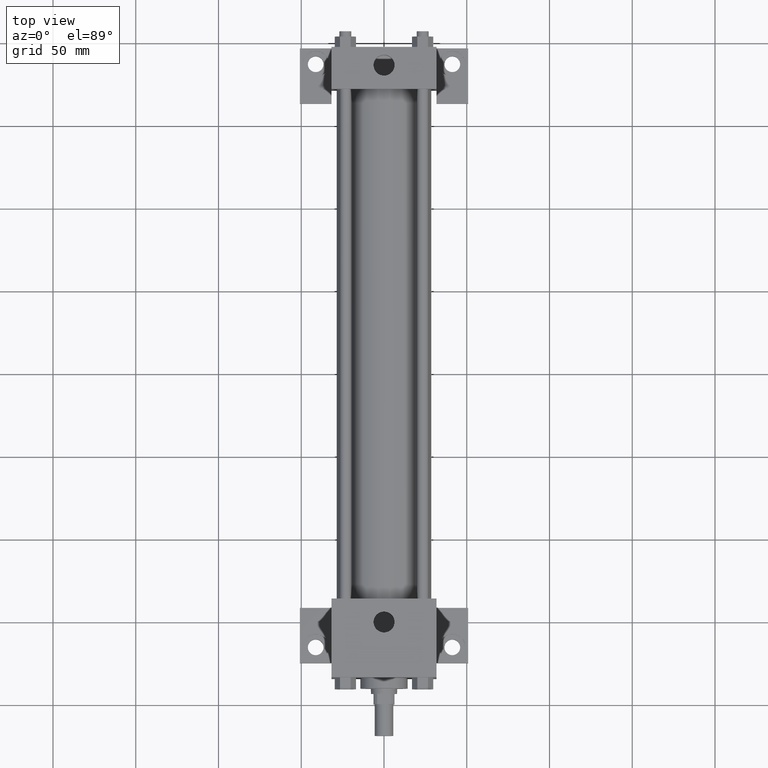
[diagram: clean part render]
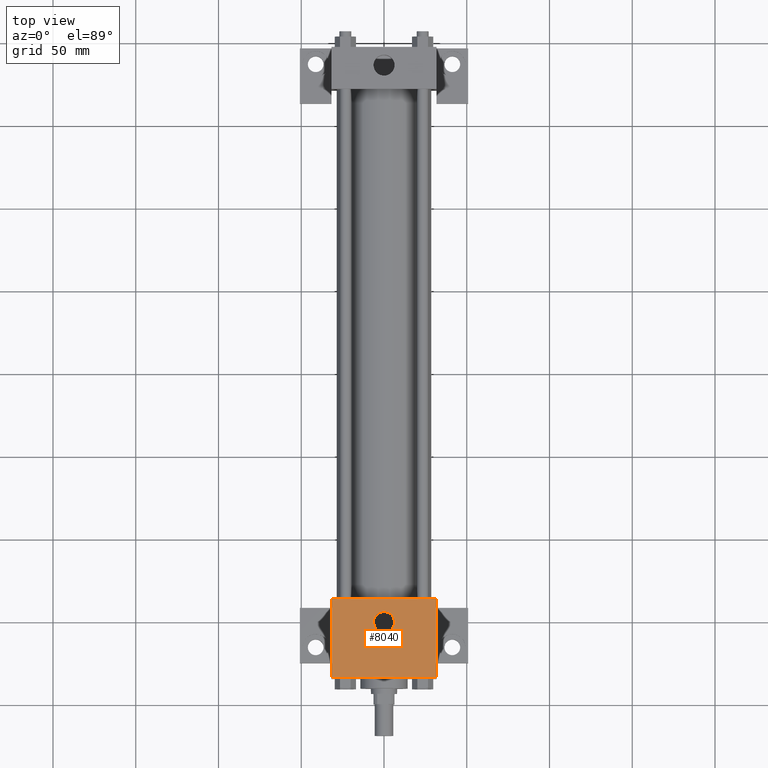
[diagram: same view with one face highlighted and labeled with its STEP entity id]
A machine part, top view. The second image highlights one B-rep face of the part: STEP entity #8040.
In plain terms, the highlighted planar face has unit normal (0, 0, 1).
Its self-contained STEP definition (entity closure, byte-faithful):
#2142=EDGE_CURVE('',#2148,#2148,#2143,.T.);
#2143=CIRCLE('',#2144,6.350000000E+000);
#2144=AXIS2_PLACEMENT_3D('',#2145,#2146,#2147);
#2145=CARTESIAN_POINT('',(0.000000000E+000,4.921250000E+001,3.175000000E+001));
#2146=DIRECTION('',(0.0E+000,0.0E+000,-1.0E+000));
#2147=DIRECTION('',(0.0E+000,-1.0E+000,0.0E+000));
#2148=VERTEX_POINT('',#2149);
#2149=CARTESIAN_POINT('',(0.000000000E+000,4.286250000E+001,3.175000000E+001));
#2554=VERTEX_POINT('',#2555);
#2555=CARTESIAN_POINT('',(-3.175000000E+001,1.587500000E+001,3.175000000E+001));
#2556=EDGE_CURVE('',#2561,#2554,#2557,.T.);
#2557=LINE('',#2558,#2559);
#2558=CARTESIAN_POINT('',(-3.175000000E+001,6.350000000E+001,3.175000000E+001));
#2559=VECTOR('',#2560,1.0E+000);
#2560=DIRECTION('',(0.0E+000,-1.0E+000,0.0E+000));
#2561=VERTEX_POINT('',#2562);
#2562=CARTESIAN_POINT('',(-3.175000000E+001,6.350000000E+001,3.175000000E+001));
#2576=FACE_OUTER_BOUND('',#2578,.T.);
#2577=FACE_BOUND('',#2579,.T.);
#2578=EDGE_LOOP('',(#2580));
#2579=EDGE_LOOP('',(#2581,#2582,#2583,#2584));
#2580=ORIENTED_EDGE('',*,*,#2142,.T.);
#2581=ORIENTED_EDGE('',*,*,#2585,.F.);
#2582=ORIENTED_EDGE('',*,*,#2592,.F.);
#2583=ORIENTED_EDGE('',*,*,#2599,.T.);
#2584=ORIENTED_EDGE('',*,*,#2556,.T.);
#2585=EDGE_CURVE('',#2590,#2554,#2586,.T.);
#2586=LINE('',#2587,#2588);
#2587=CARTESIAN_POINT('',(3.175000000E+001,1.587500000E+001,3.175000000E+001));
#2588=VECTOR('',#2589,1.0E+000);
#2589=DIRECTION('',(-1.0E+000,0.0E+000,0.0E+000));
#2590=VERTEX_POINT('',#2591);
#2591=CARTESIAN_POINT('',(3.175000000E+001,1.587500000E+001,3.175000000E+001));
#2592=EDGE_CURVE('',#2597,#2590,#2593,.T.);
#2593=LINE('',#2594,#2595);
#2594=CARTESIAN_POINT('',(3.175000000E+001,6.350000000E+001,3.175000000E+001));
#2595=VECTOR('',#2596,1.0E+000);
#2596=DIRECTION('',(0.0E+000,-1.0E+000,0.0E+000));
#2597=VERTEX_POINT('',#2598);
#2598=CARTESIAN_POINT('',(3.175000000E+001,6.350000000E+001,3.175000000E+001));
#2599=EDGE_CURVE('',#2597,#2561,#2600,.T.);
#2600=LINE('',#2601,#2602);
#2601=CARTESIAN_POINT('',(3.175000000E+001,6.350000000E+001,3.175000000E+001));
#2602=VECTOR('',#2603,1.0E+000);
#2603=DIRECTION('',(-1.0E+000,0.0E+000,0.0E+000));
#2604=PLANE('',#2605);
#2605=AXIS2_PLACEMENT_3D('',#2606,#2607,#2608);
#2606=CARTESIAN_POINT('',(3.175000000E+001,6.350000000E+001,3.175000000E+001));
#2607=DIRECTION('',(0.0E+000,0.0E+000,1.0E+000));
#2608=DIRECTION('',(1.0E+000,0.0E+000,0.0E+000));
#8040=ADVANCED_FACE('',(#2576,#2577),#2604,.T.);